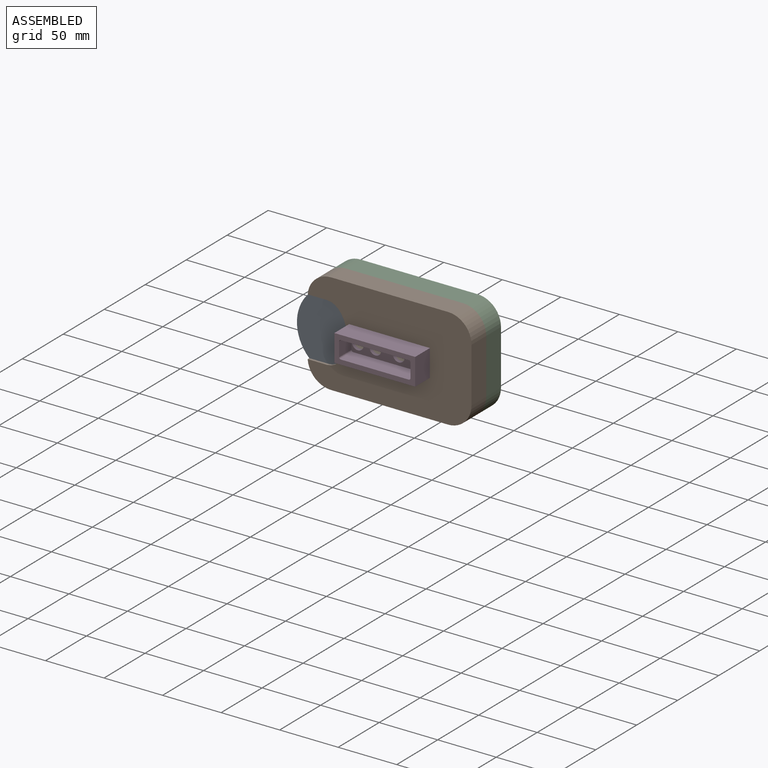
[diagram: assembled view]
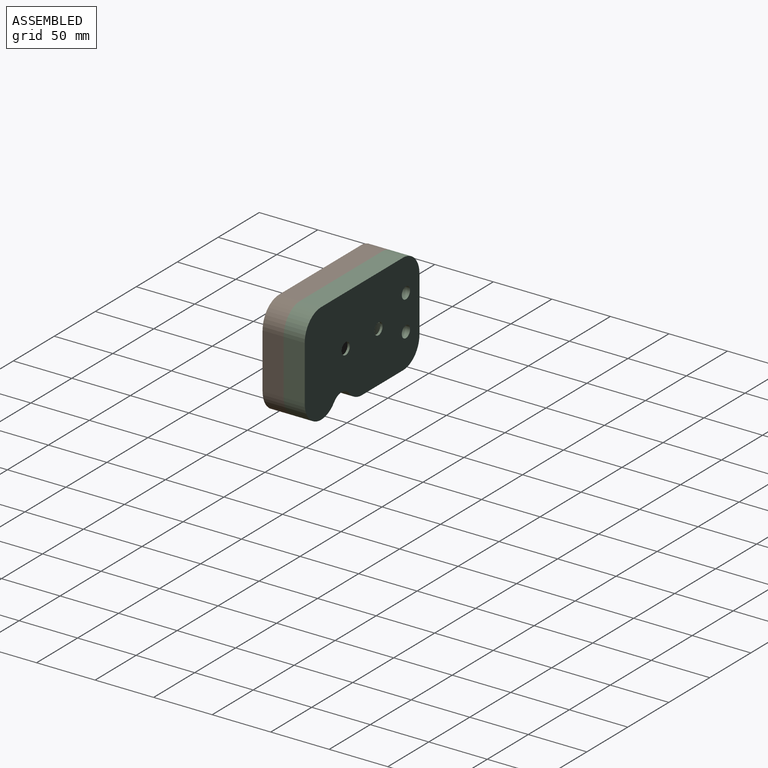
[diagram: assembled view, second angle]
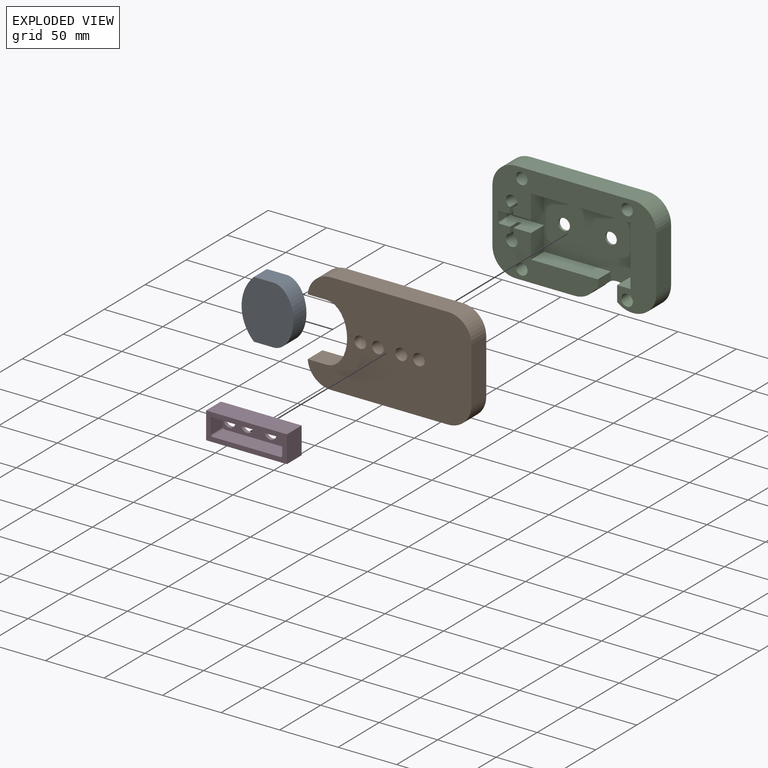
[diagram: exploded view]
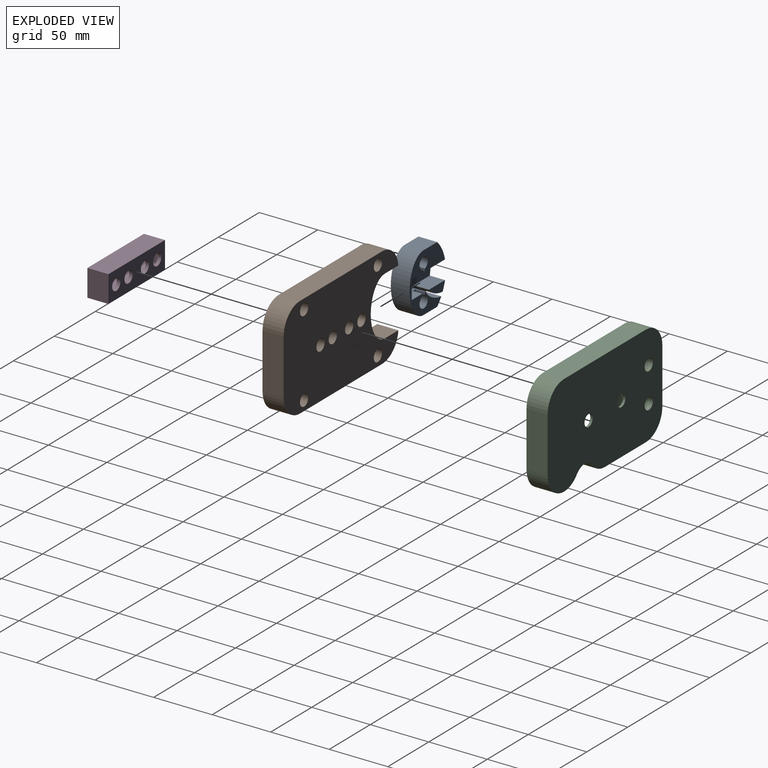
[diagram: exploded view, second angle]
ASSEMBLY  parts=4 mates=6
PART A: 22 faces, bbox 44.2x16x50 mm
  f0: cylinder r=35mm len=50mm, axis (0,1,0), area 636.9mm2, adj f1,f3,f5,f13,f15,f16,f17,f19
  f1: plane 50x43.3mm, normal (0,1,0), area 868.4mm2, adj f0,f2,f3,f4,f5,f6,f7,f9
  f2: plane 17.07x13mm, normal (0,0,-1), area 197.2mm2, adj f1,f9,f11,f14,f15,f18,f21
  f3: plane 16.69x16mm, normal (0,0,1), area 267.1mm2, adj f0,f1,f4,f19
  f4: extruded ~50x17.03mm, area 1065.9mm2, adj f1,f3,f5,f19
  f5: plane 16.69x16mm, normal (0,0,-1), area 267.1mm2, adj f0,f1,f4,f19
  f6: plane 8x2.25mm, normal (1,0,0), area 18mm2, adj f1,f8,f12,f16
  f7: plane 8x2.25mm, normal (-1,0,0), area 18mm2, adj f1,f8,f12,f16
  f8: plane 12x10mm, normal (0,1,0), area 85mm2, adj f6,f7,f12,f16
  f9: plane 8x2.25mm, normal (1,0,0), area 18mm2, adj f1,f2,f10,f14
  f10: cylinder r=5mm len=10mm, axis (0,1,0), area 226.1mm2, adj f1,f9,f11,f14
  f11: plane 8x2.25mm, normal (-1,0,0), area 18mm2, adj f1,f2,f10,f14
  f12: cylinder r=5mm len=10mm, axis (0,1,0), area 226.1mm2, adj f1,f6,f7,f8
  f13: plane 19.77x7.85mm, normal (0,1,0), area 103.4mm2, adj f0,f17,f20
  f14: plane 12x10mm, normal (0,1,0), area 85mm2, adj f2,f9,f10,f11
  f15: plane 41.51x26.81mm, normal (0,1,0), area 724.1mm2, adj f0,f2,f16,f17,f18,f20,f21
  f16: plane 40.58x13mm, normal (0,0,1), area 502.7mm2, adj f0,f1,f6,f7,f8,f15,f18
  f17: plane 19.77x13mm, normal (0,0,-1), area 257.1mm2, adj f0,f13,f15,f20
  f18: plane 16x13mm, normal (1,0,0), area 208mm2, adj f1,f2,f15,f16
  f19: plane 50x44.23mm, normal (0,-1,0), area 1865.8mm2, adj f0,f3,f4,f5
  f20: extruded ~16.9x13mm, area 249.3mm2, adj f0,f13,f15,f17
  f21: extruded ~18.95x13mm, area 293.8mm2, adj f0,f1,f2,f15
PART B: 39 faces, bbox 139.9x18x87 mm
  f0: plane 139.94x86.96mm, normal (0,1,0), area 9701.2mm2, adj f2,f3,f4,f5,f6,f7,f8,f9
  f1: plane 139.94x86.96mm, normal (0,-1,0), area 10015.4mm2, adj f2,f3,f4,f5,f6,f7,f8,f9
  f2: plane 18x3.33mm, normal (-0.14,0,0.99), area 60.5mm2, adj f0,f1,f3,f26
  f3: plane 18x16.64mm, normal (0,0,1), area 299.5mm2, adj f0,f1,f2,f4
  f4: cylinder r=20mm len=19.94mm, axis (0,1,0), area 537.8mm2, adj f0,f1,f3,f5
  f5: plane 100x18mm, normal (0,0,-1), area 1800mm2, adj f0,f1,f4,f6
  f6: cylinder r=20mm len=20mm, axis (0,1,0), area 565.5mm2, adj f0,f1,f5,f7
  f7: plane 46.96x18mm, normal (1,0,0), area 845.2mm2, adj f0,f1,f6,f8
  f8: cylinder r=20mm len=20mm, axis (0,1,0), area 565.5mm2, adj f0,f1,f7,f9
  f9: plane 100x18mm, normal (0,0,1), area 1800mm2, adj f0,f1,f8,f10
  f10: cylinder r=20mm len=19.94mm, axis (0,1,0), area 537.7mm2, adj f0,f1,f9,f11
  f11: plane 18x16.64mm, normal (0,0,-1), area 299.5mm2, adj f0,f1,f10,f12
  f12: plane 18x3.33mm, normal (-0.14,0,-0.99), area 60.5mm2, adj f0,f1,f11,f13
  f13: plane 18x3.2mm, normal (-0.41,0,-0.91), area 63mm2, adj f0,f1,f12,f14
  f14: plane 18x2.95mm, normal (-0.62,0,-0.79), area 67.4mm2, adj f0,f1,f13,f15
  f15: plane 18x3.11mm, normal (-0.77,0,-0.64), area 72.8mm2, adj f0,f1,f14,f16
  f16: plane 18x3.79mm, normal (-0.87,0,-0.49), area 78.2mm2, adj f0,f1,f15,f17
  f17: plane 18x4.33mm, normal (-0.94,0,-0.34), area 82.9mm2, adj f0,f1,f16,f18
  f18: plane 18x4.69mm, normal (-0.98,0,-0.2), area 86.3mm2, adj f0,f1,f17,f19
  f19: plane 18x4.88mm, normal (-1,0,-0.07), area 88.1mm2, adj f0,f1,f18,f20
  f20: plane 18x4.88mm, normal (-1,0,0.07), area 88.1mm2, adj f0,f1,f19,f21
  f21: plane 18x4.69mm, normal (-0.98,0,0.2), area 86.3mm2, adj f0,f1,f20,f22
  f22: plane 18x4.33mm, normal (-0.94,0,0.34), area 82.9mm2, adj f0,f1,f21,f23
  f23: plane 18x3.79mm, normal (-0.87,0,0.49), area 78.2mm2, adj f0,f1,f22,f24
  f24: plane 18x3.11mm, normal (-0.77,0,0.64), area 72.8mm2, adj f0,f1,f23,f25
  f25: plane 18x2.95mm, normal (-0.62,0,0.79), area 67.4mm2, adj f0,f1,f24,f26
  f26: plane 18x3.2mm, normal (-0.41,0,0.91), area 63mm2, adj f0,f1,f2,f25
  f27: cylinder r=5mm len=18mm, axis (0,1,0), area 565.5mm2, adj f0,f1
  f28: cylinder r=5mm len=18mm, axis (0,1,0), area 565.5mm2, adj f0,f1
  f29: cylinder r=5mm len=18mm, axis (0,1,0), area 565.5mm2, adj f0,f1
  f30: cylinder r=5mm len=18mm, axis (0,1,0), area 565.5mm2, adj f0,f1
  f31: cylinder r=5mm len=12mm, axis (0,1,0), area 377mm2, adj f0,f32
  f32: plane 10x10mm, normal (0,1,0), area 78.5mm2, adj f31
  f33: cylinder r=5mm len=12mm, axis (0,1,0), area 377mm2, adj f0,f34
  f34: plane 10x10mm, normal (0,1,0), area 78.5mm2, adj f33
  f35: cylinder r=5mm len=12mm, axis (0,1,0), area 377mm2, adj f0,f36
  f36: plane 10x10mm, normal (0,1,0), area 78.5mm2, adj f35
  f37: cylinder r=5mm len=12mm, axis (0,1,0), area 377mm2, adj f0,f38
  f38: plane 10x10mm, normal (0,1,0), area 78.5mm2, adj f37
PART C: 46 faces, bbox 140x18x87 mm
  f0: plane 140x86.96mm, normal (0,1,0), area 11254.3mm2, adj f4,f5,f8,f9,f10,f11,f12,f13
  f1: plane 113x63.99mm, normal (0,-1,0), area 4586.1mm2, adj f3,f6,f7,f15,f16,f17,f18,f19
  f2: plane 140x86.96mm, normal (0,-1,0), area 6322.5mm2, adj f3,f4,f5,f6,f7,f8,f9,f10
  f3: plane 85x16mm, normal (0,0,-1), area 1360mm2, adj f1,f2,f18,f43
  f4: plane 100x18mm, normal (0,0,1), area 1800mm2, adj f0,f2,f9,f10
  f5: plane 50.28x18mm, normal (0,0,-1), area 905.1mm2, adj f0,f2,f12,f32
  f6: plane 26.5x16mm, normal (0,0,-1), area 393mm2, adj f1,f2,f18,f26,f27,f28,f29
  f7: plane 26.5x16mm, normal (0,0,1), area 393mm2, adj f1,f2,f20,f21,f22,f23,f30
  f8: plane 46.96x18mm, normal (1,0,0), area 845.2mm2, adj f0,f2,f9,f14
  f9: cylinder r=20mm len=20mm, axis (0,1,0), area 565.5mm2, adj f0,f2,f4,f8
  f10: cylinder r=20mm len=20mm, axis (0,1,0), area 565.5mm2, adj f0,f2,f4,f11
  f11: plane 46.96x18mm, normal (-1,0,0), area 845.2mm2, adj f0,f2,f10,f12
  f12: cylinder r=20mm len=20mm, axis (0,1,0), area 565.5mm2, adj f0,f2,f5,f11
  f13: plane 18x0.28mm, normal (0,0,-1), area 5.1mm2, adj f0,f2,f14,f33
  f14: cylinder r=20mm len=20mm, axis (0,1,0), area 565.5mm2, adj f0,f2,f8,f13
  f15: plane 16x7.29mm, normal (1,0,0), area 116.7mm2, adj f1,f2,f17,f31
  f16: plane 16x12.99mm, normal (-1,0,0), area 207.8mm2, adj f1,f2,f33,f42
  f17: plane 57x16mm, normal (0,0,1), area 912mm2, adj f1,f2,f15,f20
  f18: plane 20.5x16mm, normal (1,0,0), area 328mm2, adj f1,f2,f3,f6
  f19: plane 16x7mm, normal (1,0,0), area 112mm2, adj f1,f2,f29,f30
  f20: plane 20.5x16mm, normal (1,0,0), area 328mm2, adj f1,f2,f7,f17
  f21: plane 5.25x3.1mm, normal (0,-1,0), area 15.8mm2, adj f7,f22,f23,f24
  f22: plane 10x5.25mm, normal (-1,0,0), area 52.5mm2, adj f2,f7,f21,f24
  f23: plane 10x5.25mm, normal (1,0,0), area 52.5mm2, adj f2,f7,f21,f24
  f24: cylinder r=5mm len=18mm, axis (0,-1,0), area 534mm2, adj f0,f2,f21,f22,f23
  f25: cylinder r=5mm len=18mm, axis (0,-1,0), area 534mm2, adj f0,f2,f26,f27,f28
  f26: plane 10x5.25mm, normal (1,0,0), area 52.5mm2, adj f2,f6,f25,f28
  f27: plane 10x5.25mm, normal (-1,0,0), area 52.5mm2, adj f2,f6,f25,f28
  f28: plane 5.25x3.1mm, normal (0,-1,0), area 15.8mm2, adj f6,f25,f26,f27
  f29: cylinder r=1.5mm len=16mm, axis (0,1,0), area 37.7mm2, adj f1,f2,f6,f19
  f30: cylinder r=1.5mm len=16mm, axis (0,-1,0), area 37.7mm2, adj f1,f2,f7,f19
  f31: cylinder r=11.8mm len=18.34mm, axis (0,-1,0), area 127.5mm2, adj f0,f1,f2,f15,f32,f33
  f32: cylinder r=20mm len=18mm, axis (0,-1,0), area 320.6mm2, adj f0,f2,f5,f31
  f33: cylinder r=20mm len=18mm, axis (0,-1,0), area 266.7mm2, adj f0,f1,f2,f13,f16,f31
  f34: cylinder r=5mm len=12mm, axis (0,-1,0), area 377mm2, adj f2,f35
  f35: plane 10x10mm, normal (0,-1,0), area 78.5mm2, adj f34
  f36: cylinder r=5mm len=12mm, axis (0,-1,0), area 377mm2, adj f2,f37
  f37: plane 10x10mm, normal (0,-1,0), area 78.5mm2, adj f36
  f38: cylinder r=5mm len=12mm, axis (0,-1,0), area 377mm2, adj f2,f39
  f39: plane 10x10mm, normal (0,-1,0), area 78.5mm2, adj f38
  f40: cylinder r=5mm len=12mm, axis (0,-1,0), area 377mm2, adj f2,f41
  f41: plane 10x10mm, normal (0,-1,0), area 78.5mm2, adj f40
  f42: plane 16x11.5mm, normal (0,0,1), area 184mm2, adj f1,f2,f16,f43
  f43: plane 51x16mm, normal (-1,0,0), area 816mm2, adj f1,f2,f3,f42
  f44: cylinder r=5mm len=10mm, axis (0,-1,0), area 62.8mm2, adj f0,f1
  f45: cylinder r=5mm len=10mm, axis (0,-1,0), area 62.8mm2, adj f0,f1
PART D: 19 faces, bbox 69x18x23 mm
  f0: cylinder r=5mm len=10mm, axis (0,1,0), area 94.2mm2, adj f9,f10
  f1: cylinder r=5mm len=10mm, axis (0,1,0), area 94.2mm2, adj f9,f10
  f2: cylinder r=5mm len=10mm, axis (0,1,0), area 94.2mm2, adj f9,f10
  f3: cylinder r=5mm len=10mm, axis (0,1,0), area 94.2mm2, adj f9,f10
  f4: plane 69x23mm, normal (0,-1,0), area 673.9mm2, adj f5,f6,f7,f8,f11,f12,f13,f14
  f5: plane 23x18mm, normal (-1,0,0), area 414mm2, adj f4,f6,f8,f9
  f6: plane 69x18mm, normal (0,0,-1), area 1242mm2, adj f4,f5,f7,f9
  f7: plane 23x18mm, normal (1,0,0), area 414mm2, adj f4,f6,f8,f9
  f8: plane 69x18mm, normal (0,0,1), area 1242mm2, adj f4,f5,f7,f9
  f9: plane 69x23mm, normal (0,1,0), area 1272.8mm2, adj f0,f1,f2,f3,f5,f6,f7,f8
  f10: plane 61x15mm, normal (0,-1,0), area 598.9mm2, adj f0,f1,f2,f3,f11,f12,f13,f14
  f11: plane 58x15mm, normal (0,0,-1), area 870mm2, adj f4,f10,f15,f18
  f12: plane 15x12mm, normal (1,0,0), area 180mm2, adj f4,f10,f15,f16
  f13: plane 58x15mm, normal (0,0,1), area 870mm2, adj f4,f10,f16,f17
  f14: plane 15x12mm, normal (-1,0,0), area 180mm2, adj f4,f10,f17,f18
  f15: cylinder r=1.5mm len=15mm, axis (0,1,0), area 35.3mm2, adj f4,f10,f11,f12
  f16: cylinder r=1.5mm len=15mm, axis (0,-1,0), area 35.3mm2, adj f4,f10,f12,f13
  f17: cylinder r=1.5mm len=15mm, axis (0,1,0), area 35.3mm2, adj f4,f10,f13,f14
  f18: cylinder r=1.5mm len=15mm, axis (0,-1,0), area 35.3mm2, adj f4,f10,f11,f14
PLACE A rot(axis=(0,1,0),179.9deg) t=(-131.12,31.88,-26.37)mm
PLACE B rot(axis=(-1,0,0),0deg) t=(-25.89,31.88,90.66)mm
PLACE C rot(axis=(-1,0,0),0deg) t=(-25.89,49.88,90.66)mm fixed
PLACE D rot(axis=(-1,0,0),0deg) t=(-25.89,13.88,90.66)mm
MATE planar D.f9 <-> B.f1  axis (0,1,0) through (-25.89,13.88,90.66)mm
MATE planar B.f5 <-> C.f5  axis (0,0,-1) through (24.11,31.88,47.18)mm
MATE slider B.f30 <-> D.f0  axis (0,-1,0) through (-0.89,13.88,90.66)mm
MATE planar C.f2 <-> A.f1  axis (0,-1,0) through (-27.45,31.88,92.89)mm
MATE planar B.f0 <-> C.f2  axis (0,1,0) through (-17.42,31.88,90.66)mm
MATE planar B.f7 <-> C.f8  axis (1,0,0) through (44.11,22.88,114.14)mm
